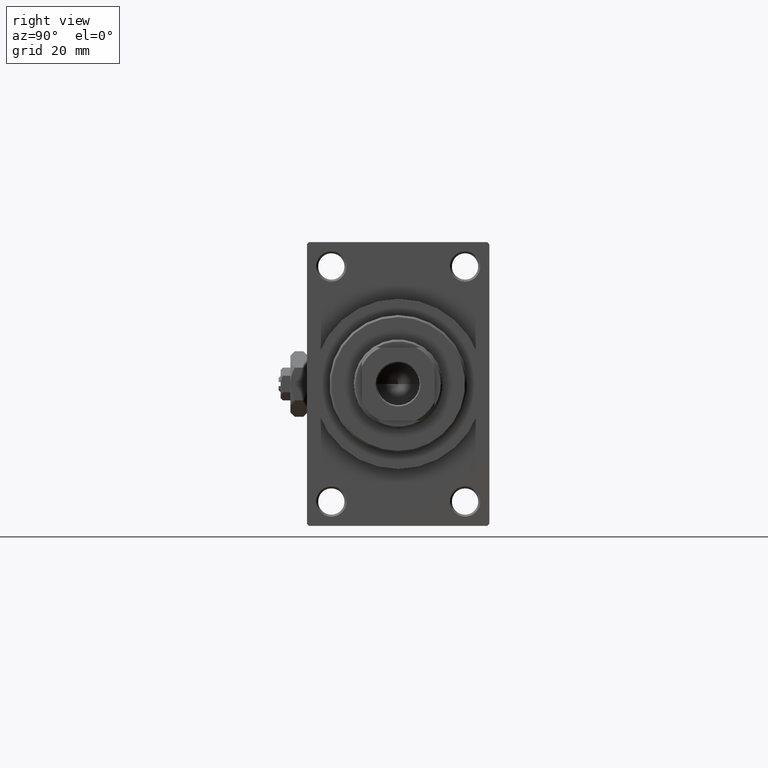
[diagram: clean part render]
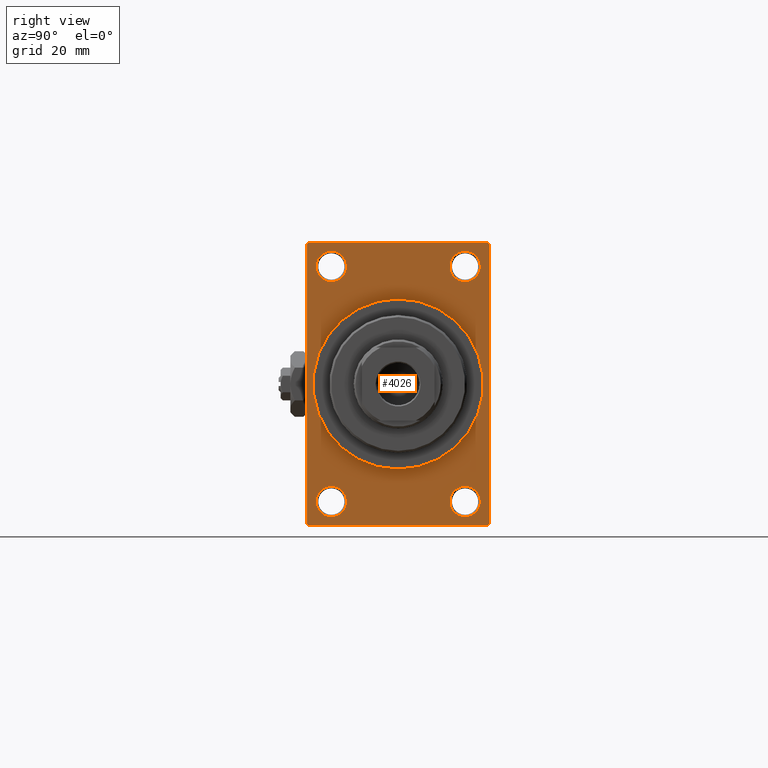
[diagram: same view with one face highlighted and labeled with its STEP entity id]
A machine part, right view. The second image highlights one B-rep face of the part: STEP entity #4026.
In plain terms, the highlighted planar face has unit normal (-1, 0, 0).
Its self-contained STEP definition (entity closure, byte-faithful):
#386 = EDGE_LOOP ( 'NONE', ( #2392, #8930 ) ) ;
#588 = ORIENTED_EDGE ( 'NONE', *, *, #43699, .T. ) ;
#725 = DIRECTION ( 'NONE',  ( 0.000000000000000000, 0.000000000000000000, -1.000000000000000000 ) ) ;
#922 = CIRCLE ( 'NONE', #11904, 3.750000000000076383 ) ;
#1139 = EDGE_CURVE ( 'NONE', #44687, #1763, #29323, .T. ) ;
#1141 = AXIS2_PLACEMENT_3D ( 'NONE', #4018, #31069, #23377 ) ;
#1503 = VERTEX_POINT ( 'NONE', #18865 ) ;
#1652 = ORIENTED_EDGE ( 'NONE', *, *, #31876, .T. ) ;
#1763 = VERTEX_POINT ( 'NONE', #7620 ) ;
#2000 = DIRECTION ( 'NONE',  ( 0.000000000000000000, 0.000000000000000000, 1.000000000000000000 ) ) ;
#2392 = ORIENTED_EDGE ( 'NONE', *, *, #44286, .T. ) ;
#2973 = VERTEX_POINT ( 'NONE', #7322 ) ;
#4018 = CARTESIAN_POINT ( 'NONE',  ( 113.0000000000000142, 0.000000000000000000, 0.000000000000000000 ) ) ;
#4026 = ADVANCED_FACE ( 'NONE', ( #41746, #7743, #42507, #27099, #19421, #15448 ), #38011, .F. ) ;
#4231 = LINE ( 'NONE', #48925, #40124 ) ;
#4352 = ORIENTED_EDGE ( 'NONE', *, *, #12291, .T. ) ;
#5107 = EDGE_CURVE ( 'NONE', #2973, #35437, #5137, .T. ) ;
#5137 = CIRCLE ( 'NONE', #11465, 3.750000000000076383 ) ;
#6320 = CIRCLE ( 'NONE', #46744, 3.750000000000072831 ) ;
#6834 = VERTEX_POINT ( 'NONE', #11229 ) ;
#7187 = CARTESIAN_POINT ( 'NONE',  ( 113.0000000000000142, -21.99999999999998934, 35.00000000000000000 ) ) ;
#7214 = EDGE_LOOP ( 'NONE', ( #10574, #17290 ) ) ;
#7322 = CARTESIAN_POINT ( 'NONE',  ( 113.0000000000000142, 16.50000000000000000, -25.24999999999992184 ) ) ;
#7498 = CARTESIAN_POINT ( 'NONE',  ( 113.0000000000000142, -22.50000000000000355, -34.49999999999997158 ) ) ;
#7522 = CIRCLE ( 'NONE', #30520, 21.00000000000000000 ) ;
#7620 = CARTESIAN_POINT ( 'NONE',  ( 113.0000000000000142, -21.99999999999997513, -35.00000000000000000 ) ) ;
#7669 = LINE ( 'NONE', #22555, #9635 ) ;
#7743 = FACE_BOUND ( 'NONE', #35754, .T. ) ;
#8198 = CARTESIAN_POINT ( 'NONE',  ( 113.0000000000000142, 22.49999999999999645, 35.00000000000000000 ) ) ;
#8614 = ORIENTED_EDGE ( 'NONE', *, *, #47800, .T. ) ;
#8627 = DIRECTION ( 'NONE',  ( 0.000000000000000000, 0.000000000000000000, -1.000000000000000000 ) ) ;
#8930 = ORIENTED_EDGE ( 'NONE', *, *, #5107, .T. ) ;
#8962 = CARTESIAN_POINT ( 'NONE',  ( 113.0000000000000142, -16.50000000000000000, 29.00000000000000711 ) ) ;
#9114 = CARTESIAN_POINT ( 'NONE',  ( 113.0000000000000142, -22.50000000000000355, 34.50000000000000000 ) ) ;
#9207 = DIRECTION ( 'NONE',  ( 0.000000000000000000, 0.000000000000000000, 1.000000000000000000 ) ) ;
#9448 = DIRECTION ( 'NONE',  ( -1.000000000000000000, -0.000000000000000000, -0.000000000000000000 ) ) ;
#9635 = VECTOR ( 'NONE', #48877, 1000.000000000000000 ) ;
#9776 = LINE ( 'NONE', #21421, #31016 ) ;
#10158 = EDGE_LOOP ( 'NONE', ( #42228, #45367 ) ) ;
#10193 = CARTESIAN_POINT ( 'NONE',  ( 113.0000000000000142, 16.50000000000000000, -28.99999999999999289 ) ) ;
#10268 = ORIENTED_EDGE ( 'NONE', *, *, #39673, .T. ) ;
#10384 = CIRCLE ( 'NONE', #30187, 3.750000000000069278 ) ;
#10453 = CARTESIAN_POINT ( 'NONE',  ( 113.0000000000000142, 22.49999999999999645, 34.50000000000000000 ) ) ;
#10574 = ORIENTED_EDGE ( 'NONE', *, *, #14859, .F. ) ;
#10959 = CARTESIAN_POINT ( 'NONE',  ( 113.0000000000000142, -16.50000000000000000, -25.24999999999992184 ) ) ;
#11229 = CARTESIAN_POINT ( 'NONE',  ( 113.0000000000000142, -16.50000000000000000, 32.75000000000007816 ) ) ;
#11465 = AXIS2_PLACEMENT_3D ( 'NONE', #10193, #22091, #25314 ) ;
#11466 = CARTESIAN_POINT ( 'NONE',  ( 113.0000000000000142, -16.50000000000000000, 29.00000000000000711 ) ) ;
#11698 = CARTESIAN_POINT ( 'NONE',  ( 113.0000000000000142, 16.50000000000000000, 25.24999999999993250 ) ) ;
#11904 = AXIS2_PLACEMENT_3D ( 'NONE', #28544, #46458, #2000 ) ;
#12291 = EDGE_CURVE ( 'NONE', #48893, #23851, #4231, .T. ) ;
#12590 = CARTESIAN_POINT ( 'NONE',  ( 113.0000000000000142, 16.50000000000000000, 29.00000000000000355 ) ) ;
#12884 = CARTESIAN_POINT ( 'NONE',  ( 113.0000000000000142, -22.50000000000000355, 35.00000000000000000 ) ) ;
#12909 = DIRECTION ( 'NONE',  ( 0.000000000000000000, 0.000000000000000000, 1.000000000000000000 ) ) ;
#12953 = VECTOR ( 'NONE', #48206, 999.9999999999998863 ) ;
#13072 = DIRECTION ( 'NONE',  ( 1.000000000000000000, 0.000000000000000000, 0.000000000000000000 ) ) ;
#13323 = AXIS2_PLACEMENT_3D ( 'NONE', #21005, #13072, #36122 ) ;
#14256 = DIRECTION ( 'NONE',  ( -1.000000000000000000, -0.000000000000000000, -0.000000000000000000 ) ) ;
#14859 = EDGE_CURVE ( 'NONE', #27276, #40739, #14908, .T. ) ;
#14908 = CIRCLE ( 'NONE', #13323, 21.00000000000000000 ) ;
#15029 = ORIENTED_EDGE ( 'NONE', *, *, #1139, .T. ) ;
#15234 = VERTEX_POINT ( 'NONE', #41481 ) ;
#15316 = LINE ( 'NONE', #45585, #44392 ) ;
#15448 = FACE_OUTER_BOUND ( 'NONE', #35893, .T. ) ;
#16311 = DIRECTION ( 'NONE',  ( -1.000000000000000000, -0.000000000000000000, -0.000000000000000000 ) ) ;
#16495 = CIRCLE ( 'NONE', #40256, 3.750000000000069278 ) ;
#16807 = CARTESIAN_POINT ( 'NONE',  ( 113.0000000000000142, 0.000000000000000000, 0.000000000000000000 ) ) ;
#17290 = ORIENTED_EDGE ( 'NONE', *, *, #21888, .F. ) ;
#18541 = VERTEX_POINT ( 'NONE', #35073 ) ;
#18830 = VERTEX_POINT ( 'NONE', #21290 ) ;
#18865 = CARTESIAN_POINT ( 'NONE',  ( 113.0000000000000142, -16.50000000000000000, 25.24999999999993960 ) ) ;
#19098 = EDGE_CURVE ( 'NONE', #29141, #18830, #6320, .T. ) ;
#19412 = CARTESIAN_POINT ( 'NONE',  ( 113.0000000000000142, 21.99999999999999645, 35.00000000000000000 ) ) ;
#19421 = FACE_BOUND ( 'NONE', #7214, .T. ) ;
#19456 = CIRCLE ( 'NONE', #25747, 3.750000000000076383 ) ;
#20210 = VECTOR ( 'NONE', #38211, 1000.000000000000000 ) ;
#20624 = VECTOR ( 'NONE', #725, 1000.000000000000000 ) ;
#20944 = DIRECTION ( 'NONE',  ( 0.000000000000000000, -1.000000000000000000, 0.000000000000000000 ) ) ;
#21005 = CARTESIAN_POINT ( 'NONE',  ( 113.0000000000000142, 0.000000000000000000, 0.000000000000000000 ) ) ;
#21290 = CARTESIAN_POINT ( 'NONE',  ( 113.0000000000000142, 16.50000000000000000, 32.75000000000007816 ) ) ;
#21421 = CARTESIAN_POINT ( 'NONE',  ( 113.0000000000000142, 22.49999999999999645, -35.00000000000000000 ) ) ;
#21888 = EDGE_CURVE ( 'NONE', #40739, #27276, #7522, .T. ) ;
#22091 = DIRECTION ( 'NONE',  ( -1.000000000000000000, -0.000000000000000000, -0.000000000000000000 ) ) ;
#22144 = DIRECTION ( 'NONE',  ( -1.000000000000000000, -0.000000000000000000, -0.000000000000000000 ) ) ;
#22210 = ORIENTED_EDGE ( 'NONE', *, *, #36300, .T. ) ;
#22281 = EDGE_CURVE ( 'NONE', #36691, #18541, #19456, .T. ) ;
#22353 = DIRECTION ( 'NONE',  ( -0.000000000000000000, -0.7071067811865474617, -0.7071067811865474617 ) ) ;
#22555 = CARTESIAN_POINT ( 'NONE',  ( 113.0000000000000142, 22.49999999999999645, 35.00000000000000000 ) ) ;
#22624 = DIRECTION ( 'NONE',  ( 0.000000000000000000, -0.7071067811865474617, 0.7071067811865474617 ) ) ;
#23282 = ORIENTED_EDGE ( 'NONE', *, *, #39899, .F. ) ;
#23377 = DIRECTION ( 'NONE',  ( -0.000000000000000000, 0.000000000000000000, 1.000000000000000000 ) ) ;
#23851 = VERTEX_POINT ( 'NONE', #9114 ) ;
#24542 = DIRECTION ( 'NONE',  ( -1.000000000000000000, -0.000000000000000000, -0.000000000000000000 ) ) ;
#24913 = ORIENTED_EDGE ( 'NONE', *, *, #48839, .T. ) ;
#25314 = DIRECTION ( 'NONE',  ( 0.000000000000000000, 0.000000000000000000, 1.000000000000000000 ) ) ;
#25460 = AXIS2_PLACEMENT_3D ( 'NONE', #46907, #24542, #12909 ) ;
#25747 = AXIS2_PLACEMENT_3D ( 'NONE', #43045, #46779, #46530 ) ;
#26336 = CARTESIAN_POINT ( 'NONE',  ( 113.0000000000000142, -21.99999999999998934, -35.00000000000000000 ) ) ;
#26759 = CARTESIAN_POINT ( 'NONE',  ( 113.0000000000000142, 21.99999999999999645, -35.00000000000000000 ) ) ;
#27099 = FACE_BOUND ( 'NONE', #10158, .T. ) ;
#27276 = VERTEX_POINT ( 'NONE', #39399 ) ;
#28544 = CARTESIAN_POINT ( 'NONE',  ( 113.0000000000000142, -16.50000000000000000, -28.99999999999999289 ) ) ;
#29141 = VERTEX_POINT ( 'NONE', #11698 ) ;
#29323 = LINE ( 'NONE', #26336, #12953 ) ;
#30187 = AXIS2_PLACEMENT_3D ( 'NONE', #11466, #22144, #41748 ) ;
#30520 = AXIS2_PLACEMENT_3D ( 'NONE', #16807, #35877, #8627 ) ;
#31016 = VECTOR ( 'NONE', #20944, 1000.000000000000000 ) ;
#31069 = DIRECTION ( 'NONE',  ( -1.000000000000000000, 0.000000000000000000, -0.000000000000000000 ) ) ;
#31177 = DIRECTION ( 'NONE',  ( -0.000000000000000000, 0.7071067811865474617, 0.7071067811865474617 ) ) ;
#31876 = EDGE_CURVE ( 'NONE', #1503, #6834, #16495, .T. ) ;
#32876 = VERTEX_POINT ( 'NONE', #26759 ) ;
#35073 = CARTESIAN_POINT ( 'NONE',  ( 113.0000000000000142, -16.50000000000000000, -32.75000000000007105 ) ) ;
#35437 = VERTEX_POINT ( 'NONE', #45759 ) ;
#35754 = EDGE_LOOP ( 'NONE', ( #10268, #37562 ) ) ;
#35877 = DIRECTION ( 'NONE',  ( 1.000000000000000000, 0.000000000000000000, 0.000000000000000000 ) ) ;
#35893 = EDGE_LOOP ( 'NONE', ( #22210, #15029, #48978, #46079, #23282, #8614, #24913, #4352 ) ) ;
#36122 = DIRECTION ( 'NONE',  ( 0.000000000000000000, 0.000000000000000000, -1.000000000000000000 ) ) ;
#36300 = EDGE_CURVE ( 'NONE', #23851, #44687, #38944, .T. ) ;
#36691 = VERTEX_POINT ( 'NONE', #10959 ) ;
#37562 = ORIENTED_EDGE ( 'NONE', *, *, #22281, .T. ) ;
#37962 = LINE ( 'NONE', #8198, #20210 ) ;
#38011 = PLANE ( 'NONE',  #1141 ) ;
#38211 = DIRECTION ( 'NONE',  ( 0.000000000000000000, -1.000000000000000000, 0.000000000000000000 ) ) ;
#38697 = VERTEX_POINT ( 'NONE', #10453 ) ;
#38882 = DIRECTION ( 'NONE',  ( 0.000000000000000000, 0.000000000000000000, 1.000000000000000000 ) ) ;
#38944 = LINE ( 'NONE', #12884, #20624 ) ;
#38971 = CIRCLE ( 'NONE', #25460, 3.750000000000076383 ) ;
#39066 = VECTOR ( 'NONE', #22624, 1000.000000000000114 ) ;
#39399 = CARTESIAN_POINT ( 'NONE',  ( 113.0000000000000142, 0.000000000000000000, 21.00000000000000000 ) ) ;
#39673 = EDGE_CURVE ( 'NONE', #18541, #36691, #922, .T. ) ;
#39899 = EDGE_CURVE ( 'NONE', #38697, #48238, #7669, .T. ) ;
#40124 = VECTOR ( 'NONE', #22353, 1000.000000000000114 ) ;
#40256 = AXIS2_PLACEMENT_3D ( 'NONE', #8962, #9448, #9207 ) ;
#40555 = CARTESIAN_POINT ( 'NONE',  ( 113.0000000000000142, 16.50000000000000000, 29.00000000000000355 ) ) ;
#40739 = VERTEX_POINT ( 'NONE', #40859 ) ;
#40859 = CARTESIAN_POINT ( 'NONE',  ( 113.0000000000000142, 2.571758278209441661E-15, -21.00000000000000000 ) ) ;
#40880 = EDGE_CURVE ( 'NONE', #32876, #48238, #15316, .T. ) ;
#41481 = CARTESIAN_POINT ( 'NONE',  ( 113.0000000000000142, 21.99999999999999645, 35.00000000000000000 ) ) ;
#41658 = EDGE_LOOP ( 'NONE', ( #1652, #588 ) ) ;
#41746 = FACE_BOUND ( 'NONE', #41658, .T. ) ;
#41748 = DIRECTION ( 'NONE',  ( 0.000000000000000000, 0.000000000000000000, 1.000000000000000000 ) ) ;
#42228 = ORIENTED_EDGE ( 'NONE', *, *, #19098, .T. ) ;
#42507 = FACE_BOUND ( 'NONE', #386, .T. ) ;
#42600 = CARTESIAN_POINT ( 'NONE',  ( 113.0000000000000142, 22.49999999999999645, -34.50000000000000000 ) ) ;
#42745 = LINE ( 'NONE', #19412, #39066 ) ;
#43045 = CARTESIAN_POINT ( 'NONE',  ( 113.0000000000000142, -16.50000000000000000, -28.99999999999999289 ) ) ;
#43650 = EDGE_CURVE ( 'NONE', #32876, #1763, #9776, .T. ) ;
#43699 = EDGE_CURVE ( 'NONE', #6834, #1503, #10384, .T. ) ;
#44286 = EDGE_CURVE ( 'NONE', #35437, #2973, #38971, .T. ) ;
#44392 = VECTOR ( 'NONE', #31177, 1000.000000000000114 ) ;
#44562 = CIRCLE ( 'NONE', #47737, 3.750000000000072831 ) ;
#44687 = VERTEX_POINT ( 'NONE', #7498 ) ;
#45367 = ORIENTED_EDGE ( 'NONE', *, *, #46685, .T. ) ;
#45585 = CARTESIAN_POINT ( 'NONE',  ( 113.0000000000000142, 22.49999999999999645, -34.50000000000000000 ) ) ;
#45759 = CARTESIAN_POINT ( 'NONE',  ( 113.0000000000000142, 16.50000000000000000, -32.75000000000007105 ) ) ;
#46079 = ORIENTED_EDGE ( 'NONE', *, *, #40880, .T. ) ;
#46458 = DIRECTION ( 'NONE',  ( -1.000000000000000000, -0.000000000000000000, -0.000000000000000000 ) ) ;
#46530 = DIRECTION ( 'NONE',  ( 0.000000000000000000, 0.000000000000000000, 1.000000000000000000 ) ) ;
#46685 = EDGE_CURVE ( 'NONE', #18830, #29141, #44562, .T. ) ;
#46744 = AXIS2_PLACEMENT_3D ( 'NONE', #12590, #16311, #38882 ) ;
#46779 = DIRECTION ( 'NONE',  ( -1.000000000000000000, -0.000000000000000000, -0.000000000000000000 ) ) ;
#46907 = CARTESIAN_POINT ( 'NONE',  ( 113.0000000000000142, 16.50000000000000000, -28.99999999999999289 ) ) ;
#47737 = AXIS2_PLACEMENT_3D ( 'NONE', #40555, #14256, #48743 ) ;
#47800 = EDGE_CURVE ( 'NONE', #38697, #15234, #42745, .T. ) ;
#48206 = DIRECTION ( 'NONE',  ( 0.000000000000000000, 0.7071067811865376918, -0.7071067811865574537 ) ) ;
#48238 = VERTEX_POINT ( 'NONE', #42600 ) ;
#48743 = DIRECTION ( 'NONE',  ( 0.000000000000000000, 0.000000000000000000, 1.000000000000000000 ) ) ;
#48839 = EDGE_CURVE ( 'NONE', #15234, #48893, #37962, .T. ) ;
#48877 = DIRECTION ( 'NONE',  ( 0.000000000000000000, 0.000000000000000000, -1.000000000000000000 ) ) ;
#48893 = VERTEX_POINT ( 'NONE', #7187 ) ;
#48925 = CARTESIAN_POINT ( 'NONE',  ( 113.0000000000000142, -22.50000000000000355, 34.50000000000000000 ) ) ;
#48978 = ORIENTED_EDGE ( 'NONE', *, *, #43650, .F. ) ;